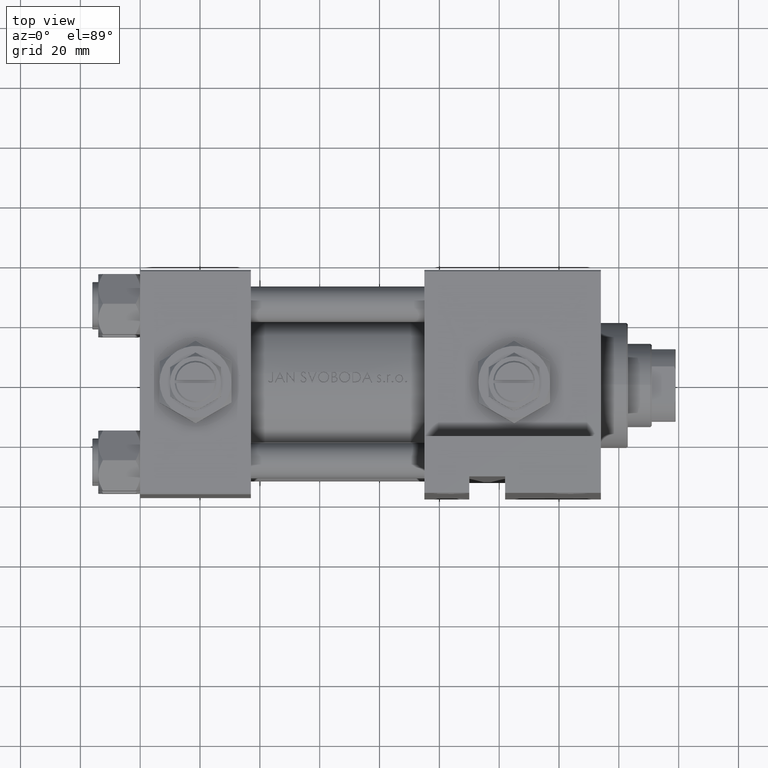
[diagram: clean part render]
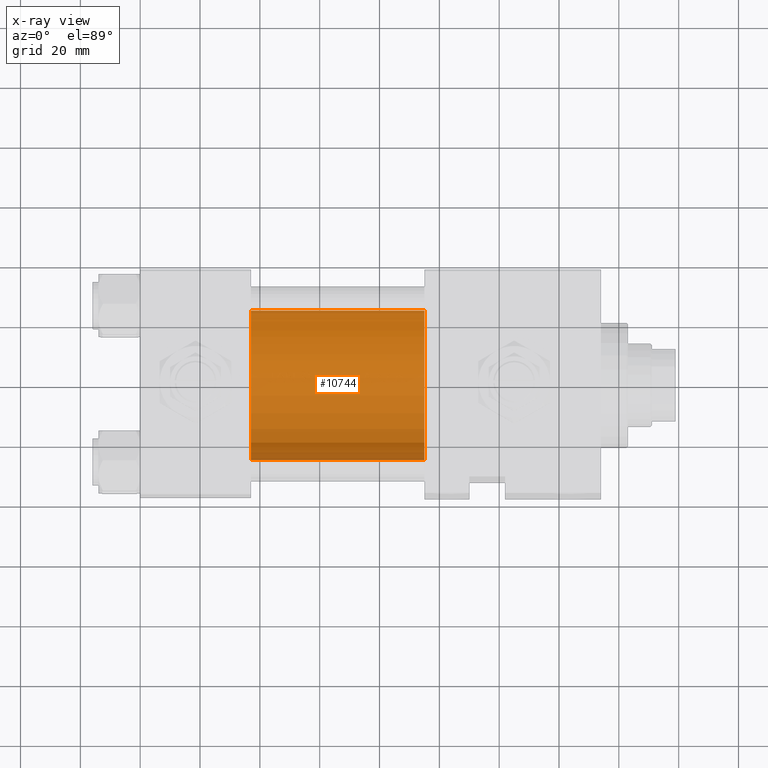
[diagram: x-ray — body ghosted, one internal face saturated and labeled with its STEP entity id]
A machine part, top view, then the same camera in x-ray: the body is ghosted and one INTERNAL B-rep face — a face not visible from any outside direction — is saturated and labeled: STEP entity #10744.
In plain terms, the highlighted cylindrical surface (partial cylindrical patch) has radius 25 mm, axis along (-1, -0, 0).
Its self-contained STEP definition (entity closure, byte-faithful):
#1140 = DIRECTION ( 'NONE',  ( -1.000000000000000000, -0.000000000000000000, -0.000000000000000000 ) ) ;
#1269 = ORIENTED_EDGE ( 'NONE', *, *, #16321, .F. ) ;
#1394 = CYLINDRICAL_SURFACE ( 'NONE', #48058, 25.00000000000000000 ) ;
#1899 = ORIENTED_EDGE ( 'NONE', *, *, #29369, .T. ) ;
#2238 = DIRECTION ( 'NONE',  ( 1.000000000000000000, 0.000000000000000000, 0.000000000000000000 ) ) ;
#2432 = CARTESIAN_POINT ( 'NONE',  ( 37.00000000000000000, 6.123233995736772199E-17, 24.50000000000000000 ) ) ;
#7645 = CARTESIAN_POINT ( 'NONE',  ( 95.00000000000000000, 6.123233995736772199E-17, 24.50000000000000000 ) ) ;
#8131 = DIRECTION ( 'NONE',  ( 0.000000000000000000, 0.000000000000000000, -1.000000000000000000 ) ) ;
#9206 = CARTESIAN_POINT ( 'NONE',  ( 95.00000000000000000, 6.123233995736772199E-17, 24.50000000000000000 ) ) ;
#10744 = ADVANCED_FACE ( 'NONE', ( #28552 ), #1394, .F. ) ;
#11188 = VERTEX_POINT ( 'NONE', #33245 ) ;
#13409 = ORIENTED_EDGE ( 'NONE', *, *, #34166, .T. ) ;
#14203 = DIRECTION ( 'NONE',  ( -1.000000000000000000, -0.000000000000000000, -0.000000000000000000 ) ) ;
#14440 = LINE ( 'NONE', #7645, #47720 ) ;
#16321 = EDGE_CURVE ( 'NONE', #24786, #11188, #23534, .T. ) ;
#18567 = DIRECTION ( 'NONE',  ( 0.000000000000000000, 0.000000000000000000, -1.000000000000000000 ) ) ;
#19259 = DIRECTION ( 'NONE',  ( -1.000000000000000000, -0.000000000000000000, -0.000000000000000000 ) ) ;
#23534 = LINE ( 'NONE', #42118, #32998 ) ;
#23624 = AXIS2_PLACEMENT_3D ( 'NONE', #48214, #2238, #18567 ) ;
#24209 = DIRECTION ( 'NONE',  ( 1.000000000000000000, 0.000000000000000000, 0.000000000000000000 ) ) ;
#24786 = VERTEX_POINT ( 'NONE', #27302 ) ;
#25452 = ORIENTED_EDGE ( 'NONE', *, *, #48585, .F. ) ;
#26042 = EDGE_LOOP ( 'NONE', ( #1269, #13409, #1899, #25452 ) ) ;
#27302 = CARTESIAN_POINT ( 'NONE',  ( 95.00000000000000000, 3.122849337825749828E-15, -25.50000000000000355 ) ) ;
#28552 = FACE_OUTER_BOUND ( 'NONE', #26042, .T. ) ;
#29264 = CIRCLE ( 'NONE', #23624, 25.00000000000000000 ) ;
#29369 = EDGE_CURVE ( 'NONE', #44390, #32745, #14440, .T. ) ;
#30236 = AXIS2_PLACEMENT_3D ( 'NONE', #42538, #24209, #8131 ) ;
#32745 = VERTEX_POINT ( 'NONE', #2432 ) ;
#32998 = VECTOR ( 'NONE', #19259, 1000.000000000000000 ) ;
#33245 = CARTESIAN_POINT ( 'NONE',  ( 37.00000000000000000, 3.122849337825749828E-15, -25.50000000000000355 ) ) ;
#34166 = EDGE_CURVE ( 'NONE', #24786, #44390, #42261, .T. ) ;
#40334 = CARTESIAN_POINT ( 'NONE',  ( 95.00000000000000000, 6.123233995736772199E-17, -0.5000000000000004441 ) ) ;
#42118 = CARTESIAN_POINT ( 'NONE',  ( 95.00000000000000000, 3.122849337825749828E-15, -25.50000000000000355 ) ) ;
#42261 = CIRCLE ( 'NONE', #30236, 25.00000000000000000 ) ;
#42538 = CARTESIAN_POINT ( 'NONE',  ( 95.00000000000000000, 6.123233995736772199E-17, -0.5000000000000004441 ) ) ;
#43359 = DIRECTION ( 'NONE',  ( 0.000000000000000000, 0.000000000000000000, 1.000000000000000000 ) ) ;
#44390 = VERTEX_POINT ( 'NONE', #9206 ) ;
#47720 = VECTOR ( 'NONE', #14203, 1000.000000000000000 ) ;
#48058 = AXIS2_PLACEMENT_3D ( 'NONE', #40334, #1140, #43359 ) ;
#48214 = CARTESIAN_POINT ( 'NONE',  ( 37.00000000000000000, 6.123233995736772199E-17, -0.5000000000000004441 ) ) ;
#48585 = EDGE_CURVE ( 'NONE', #11188, #32745, #29264, .T. ) ;